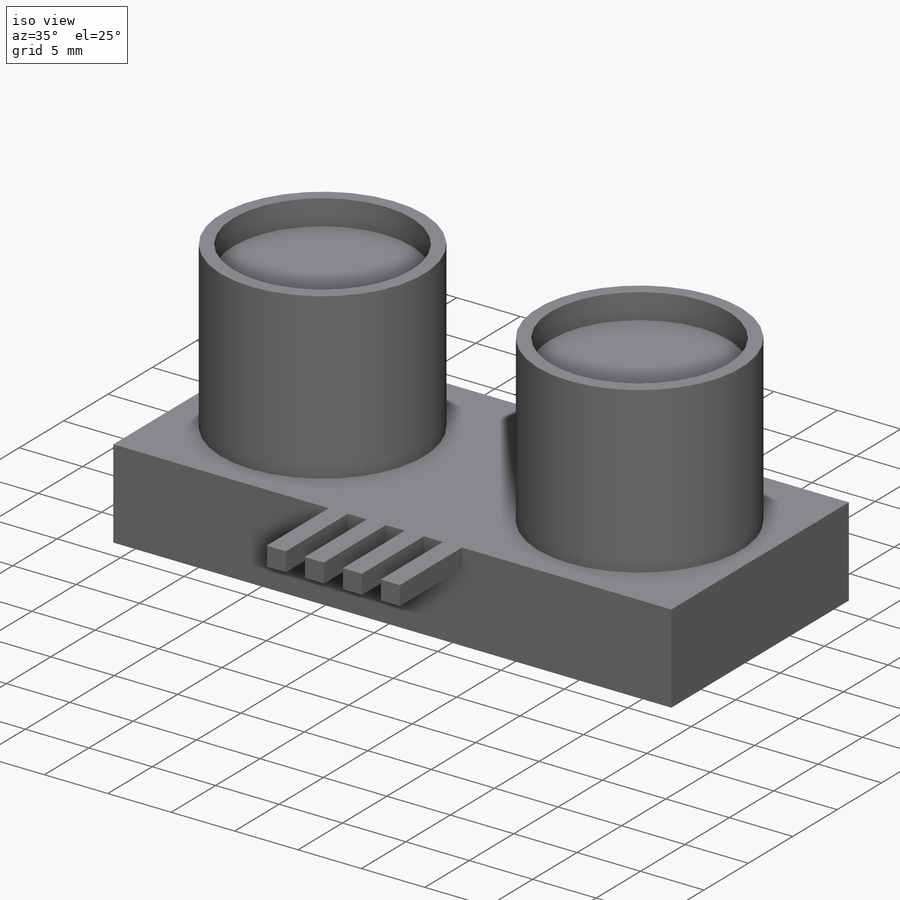
[diagram: iso view]
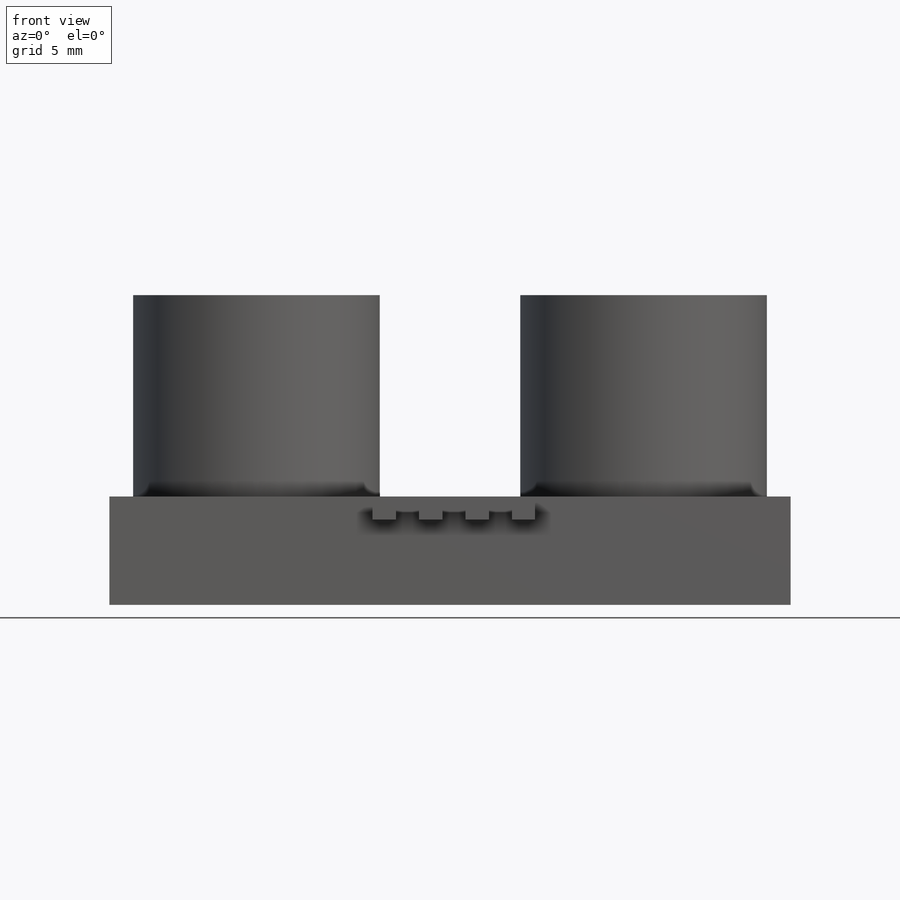
[diagram: front view]
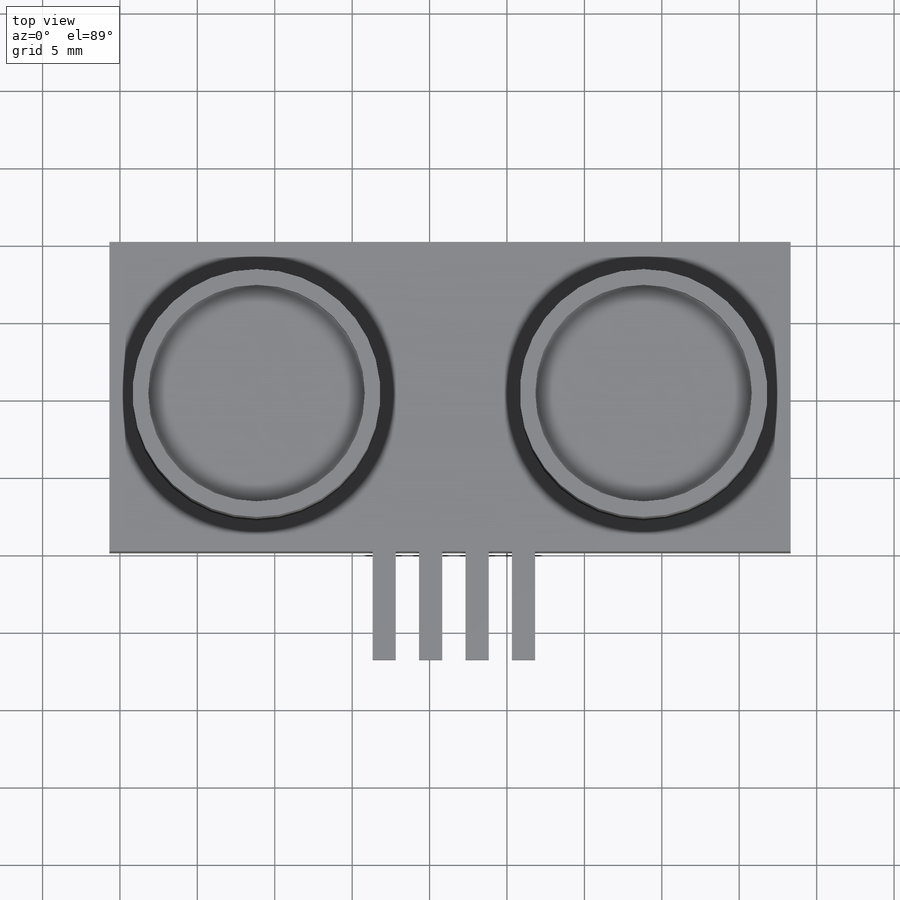
[diagram: top view]
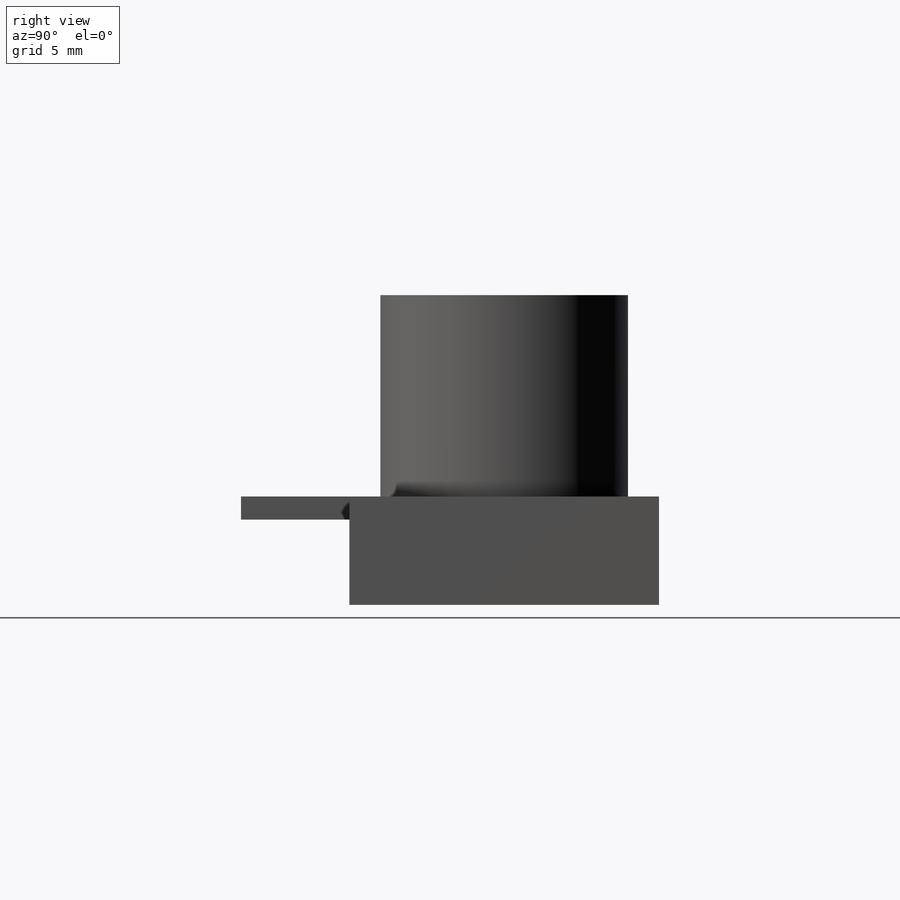
[diagram: right view]
SOLIDWORKS PART (.sldprt)
format: sldprt  version: not decoded by parser v0  size: 206,336 bytes
history: native  units: mm
features: sketch x4, extrude x3, material x1, cut_extrude x1 (+13 scaffold rows collapsed)
feature tree (22):
  scaffold x13  (default folders/planes/origin — collapsed)
  material  "Material <not specified>"
  sketch  "Sketch1"  dims[D1=44.0mm D2=20.0mm]
  extrude  "Boss-Extrude1"  Depth=7mm
  sketch  "Sketch3"  dims[c1.D1=16.0mm c1.D2=16.0mm c1.D3=16.0mm c1.D4=16.0mm c1.D5=16.0mm c1.D6=16.0mm c2.D3=9.5mm c2.D4=9.5mm c2.D5=10.0mm c2.D6=~13.793114mm c3.D5=10.0mm c3.D6=10.0mm]
  extrude  "Boss-Extrude2"  Depth=13mm
  sketch  "Sketch4"  dims[D1=14.0mm D2=14.0mm]
  cut_extrude  "Cut-Extrude1"  Depth=2mm
  sketch  "Sketch5"  dims[D1=1.5mm D2=1.5mm D4=17.0mm D3=4.0]
  extrude  "Boss-Extrude3"  Depth=7mm
decode coverage: 8 of 8 modeling features carry decoded parameters
note: ~ marks probable driven/reference dimensions
note: suppression state not decoded; provenance and decode notes live in map.json
